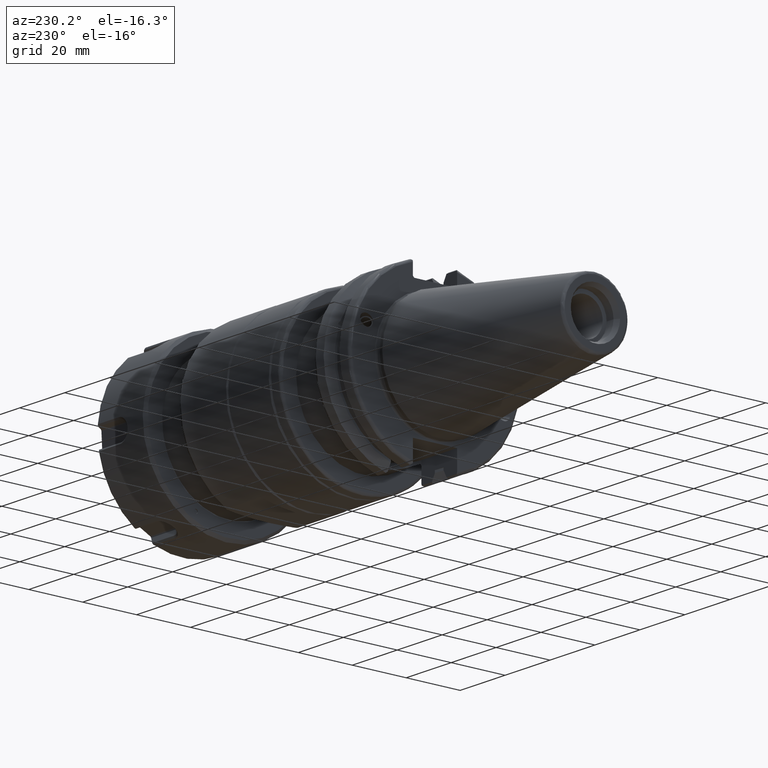
[diagram: clean part render]
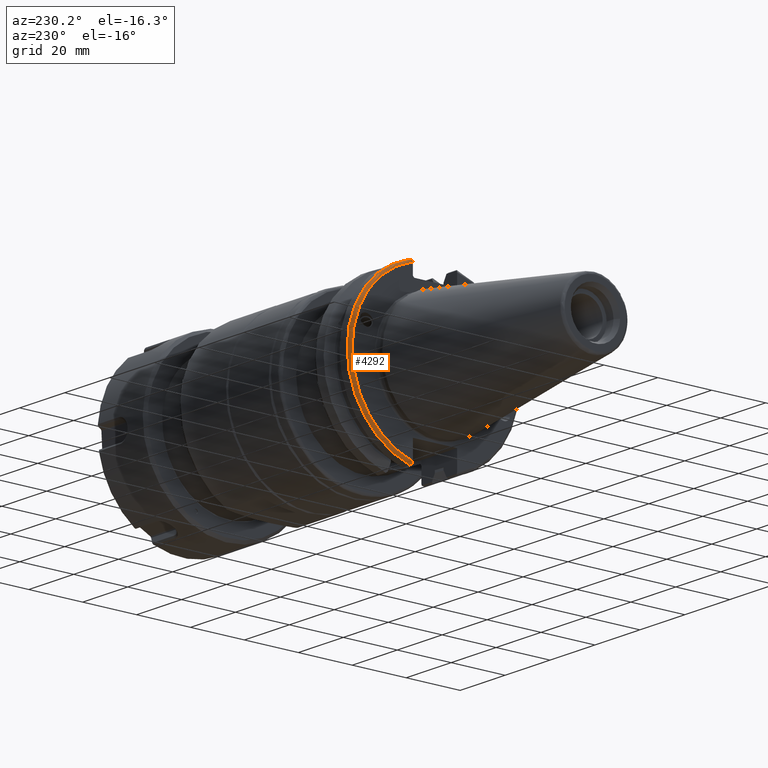
[diagram: same view with one face highlighted and labeled with its STEP entity id]
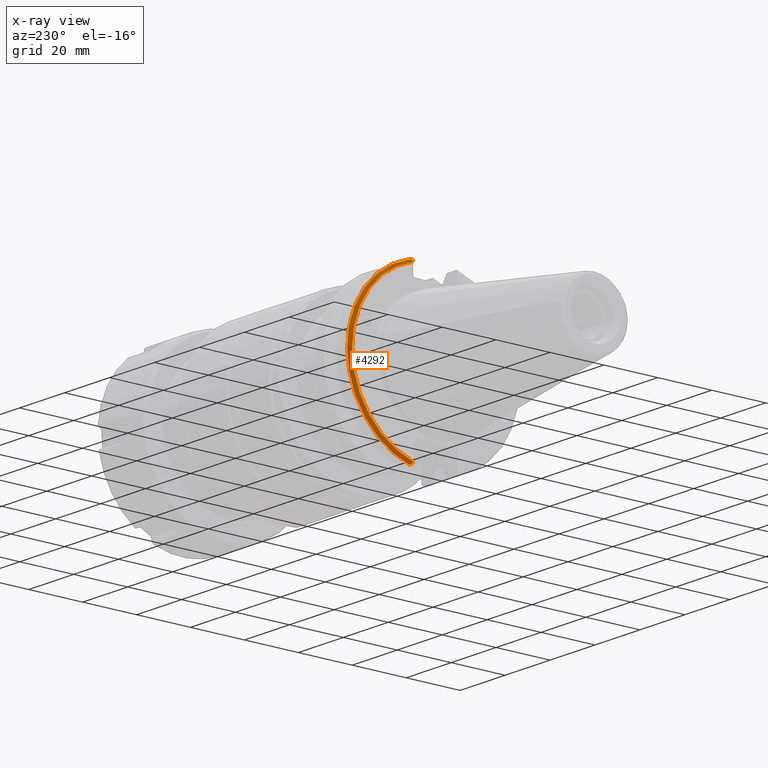
[diagram: x-ray of the same camera — body ghosted, the highlighted face saturated]
A machine part, auxiliary view. The second image highlights one B-rep face of the part: STEP entity #4292.
The next image is the same camera in x-ray: the body ghosted, the highlighted face saturated — about 0% of this face is hidden behind the body in this view.
In plain terms, the highlighted toroidal blend (fillet) surface has major radius 30.75 mm and minor (blend) radius 1 mm.
Its self-contained STEP definition (entity closure, byte-faithful):
#162=TOROIDAL_SURFACE('',#4781,30.75,1.);
#485=FACE_OUTER_BOUND('',#770,.T.);
#770=EDGE_LOOP('',(#3274,#3275,#3276,#3277,#3278,#3279));
#1050=CIRCLE('',#4763,30.75);
#1057=CIRCLE('',#4782,31.75);
#1725=B_SPLINE_CURVE_WITH_KNOTS('',3,(#7208,#7209,#7210,#7211,#7212,#7213),
 .UNSPECIFIED.,.F.,.F.,(4,2,4),(0.0977210450333169,0.111963554372601,0.150804064902975),
 .UNSPECIFIED.);
#1732=B_SPLINE_CURVE_WITH_KNOTS('',3,(#7317,#7318,#7319,#7320,#7321,#7322,
#7323,#7324),.UNSPECIFIED.,.F.,.F.,(4,2,2,4),(-0.104180282751876,-0.072978474246144,
-0.0343524753874979,0.),.UNSPECIFIED.);
#1733=B_SPLINE_CURVE_WITH_KNOTS('',3,(#7327,#7328,#7329,#7330,#7331,#7332,
#7333,#7334),.UNSPECIFIED.,.F.,.F.,(4,2,2,4),(0.,0.0343524753874975,0.0729784742461445,
0.104180282751877),.UNSPECIFIED.);
#1734=B_SPLINE_CURVE_WITH_KNOTS('',3,(#7335,#7336,#7337,#7338,#7339,#7340),
 .UNSPECIFIED.,.F.,.F.,(4,2,4),(0.452741154494498,0.491581665024872,0.505824174364157),
 .UNSPECIFIED.);
#1948=VERTEX_POINT('',#7154);
#1949=VERTEX_POINT('',#7156);
#1958=VERTEX_POINT('',#7207);
#1977=VERTEX_POINT('',#7315);
#1978=VERTEX_POINT('',#7316);
#1979=VERTEX_POINT('',#7325);
#2418=EDGE_CURVE('',#1949,#1948,#1050,.T.);
#2432=EDGE_CURVE('',#1958,#1949,#1725,.T.);
#2462=EDGE_CURVE('',#1977,#1978,#1732,.T.);
#2463=EDGE_CURVE('',#1978,#1979,#1057,.T.);
#2464=EDGE_CURVE('',#1979,#1958,#1733,.T.);
#2465=EDGE_CURVE('',#1948,#1977,#1734,.T.);
#3274=ORIENTED_EDGE('',*,*,#2462,.T.);
#3275=ORIENTED_EDGE('',*,*,#2463,.T.);
#3276=ORIENTED_EDGE('',*,*,#2464,.T.);
#3277=ORIENTED_EDGE('',*,*,#2432,.T.);
#3278=ORIENTED_EDGE('',*,*,#2418,.T.);
#3279=ORIENTED_EDGE('',*,*,#2465,.T.);
#4292=ADVANCED_FACE('',(#485),#162,.T.);
#4763=AXIS2_PLACEMENT_3D('',#7157,#5523,#5524);
#4781=AXIS2_PLACEMENT_3D('',#7314,#5581,#5582);
#4782=AXIS2_PLACEMENT_3D('',#7326,#5583,#5584);
#5523=DIRECTION('center_axis',(1.,0.,0.));
#5524=DIRECTION('ref_axis',(0.,1.,1.60812264967664E-16));
#5581=DIRECTION('center_axis',(1.,0.,0.));
#5582=DIRECTION('ref_axis',(0.,0.,-1.));
#5583=DIRECTION('center_axis',(-1.,0.,0.));
#5584=DIRECTION('ref_axis',(0.,1.,1.60812264967664E-16));
#7154=CARTESIAN_POINT('',(3.175,8.19,29.6392712461019));
#7156=CARTESIAN_POINT('',(3.175,8.18999999999999,-29.6392712461019));
#7157=CARTESIAN_POINT('Origin',(3.175,0.,0.));
#7207=CARTESIAN_POINT('',(3.31912772509028,8.19,-30.1755016258903));
#7208=CARTESIAN_POINT('Ctrl Pts',(3.31912772509028,8.19,-30.1755016258903));
#7209=CARTESIAN_POINT('Ctrl Pts',(3.29318362718666,8.19,-30.131014531546));
#7210=CARTESIAN_POINT('Ctrl Pts',(3.27103565282437,8.19,-30.0852355256475));
#7211=CARTESIAN_POINT('Ctrl Pts',(3.20451443291695,8.19,-29.9212724384851));
#7212=CARTESIAN_POINT('Ctrl Pts',(3.175,8.19,-29.7687396145364));
#7213=CARTESIAN_POINT('Ctrl Pts',(3.175,8.19,-29.6392712461019));
#7314=CARTESIAN_POINT('Origin',(4.175,0.,0.));
#7315=CARTESIAN_POINT('',(3.31912772509028,8.19,30.1755016258903));
#7316=CARTESIAN_POINT('',(4.175,8.67204822802685,30.5427254764662));
#7317=CARTESIAN_POINT('Ctrl Pts',(3.31912772509028,8.19,30.1755016258903));
#7318=CARTESIAN_POINT('Ctrl Pts',(3.36755369570114,8.2703682833078,30.2367261024977));
#7319=CARTESIAN_POINT('Ctrl Pts',(3.43232973376814,8.34909446036477,30.2966996242308));
#7320=CARTESIAN_POINT('Ctrl Pts',(3.58532758094931,8.48862804755884,30.4029961692546));
#7321=CARTESIAN_POINT('Ctrl Pts',(3.70655857052286,8.56482138642532,30.4610401774263));
#7322=CARTESIAN_POINT('Ctrl Pts',(3.92668295662254,8.6471881193939,30.5237870709558));
#7323=CARTESIAN_POINT('Ctrl Pts',(4.06049174870834,8.67204822802686,30.5427254764662));
#7324=CARTESIAN_POINT('Ctrl Pts',(4.175,8.67204822802686,30.5427254764662));
#7325=CARTESIAN_POINT('',(4.175,8.67204822802685,-30.5427254764662));
#7326=CARTESIAN_POINT('Origin',(4.175,0.,0.));
#7327=CARTESIAN_POINT('Ctrl Pts',(4.175,8.67204822802685,-30.5427254764662));
#7328=CARTESIAN_POINT('Ctrl Pts',(4.06049174870834,8.67204822802685,-30.5427254764662));
#7329=CARTESIAN_POINT('Ctrl Pts',(3.92668295662254,8.6471881193939,-30.5237870709558));
#7330=CARTESIAN_POINT('Ctrl Pts',(3.70655857052286,8.56482138642533,-30.4610401774263));
#7331=CARTESIAN_POINT('Ctrl Pts',(3.58532758094931,8.48862804755884,-30.4029961692546));
#7332=CARTESIAN_POINT('Ctrl Pts',(3.43232973376814,8.34909446036477,-30.2966996242308));
#7333=CARTESIAN_POINT('Ctrl Pts',(3.36755369570113,8.2703682833078,-30.2367261024977));
#7334=CARTESIAN_POINT('Ctrl Pts',(3.31912772509028,8.18999999999999,-30.1755016258903));
#7335=CARTESIAN_POINT('Ctrl Pts',(3.175,8.19,29.6392712461018));
#7336=CARTESIAN_POINT('Ctrl Pts',(3.175,8.19,29.7687396145364));
#7337=CARTESIAN_POINT('Ctrl Pts',(3.20451443291695,8.19,29.9212724384851));
#7338=CARTESIAN_POINT('Ctrl Pts',(3.27103565282437,8.19,30.0852355256475));
#7339=CARTESIAN_POINT('Ctrl Pts',(3.29318362718666,8.19,30.131014531546));
#7340=CARTESIAN_POINT('Ctrl Pts',(3.31912772509028,8.19,30.1755016258903));